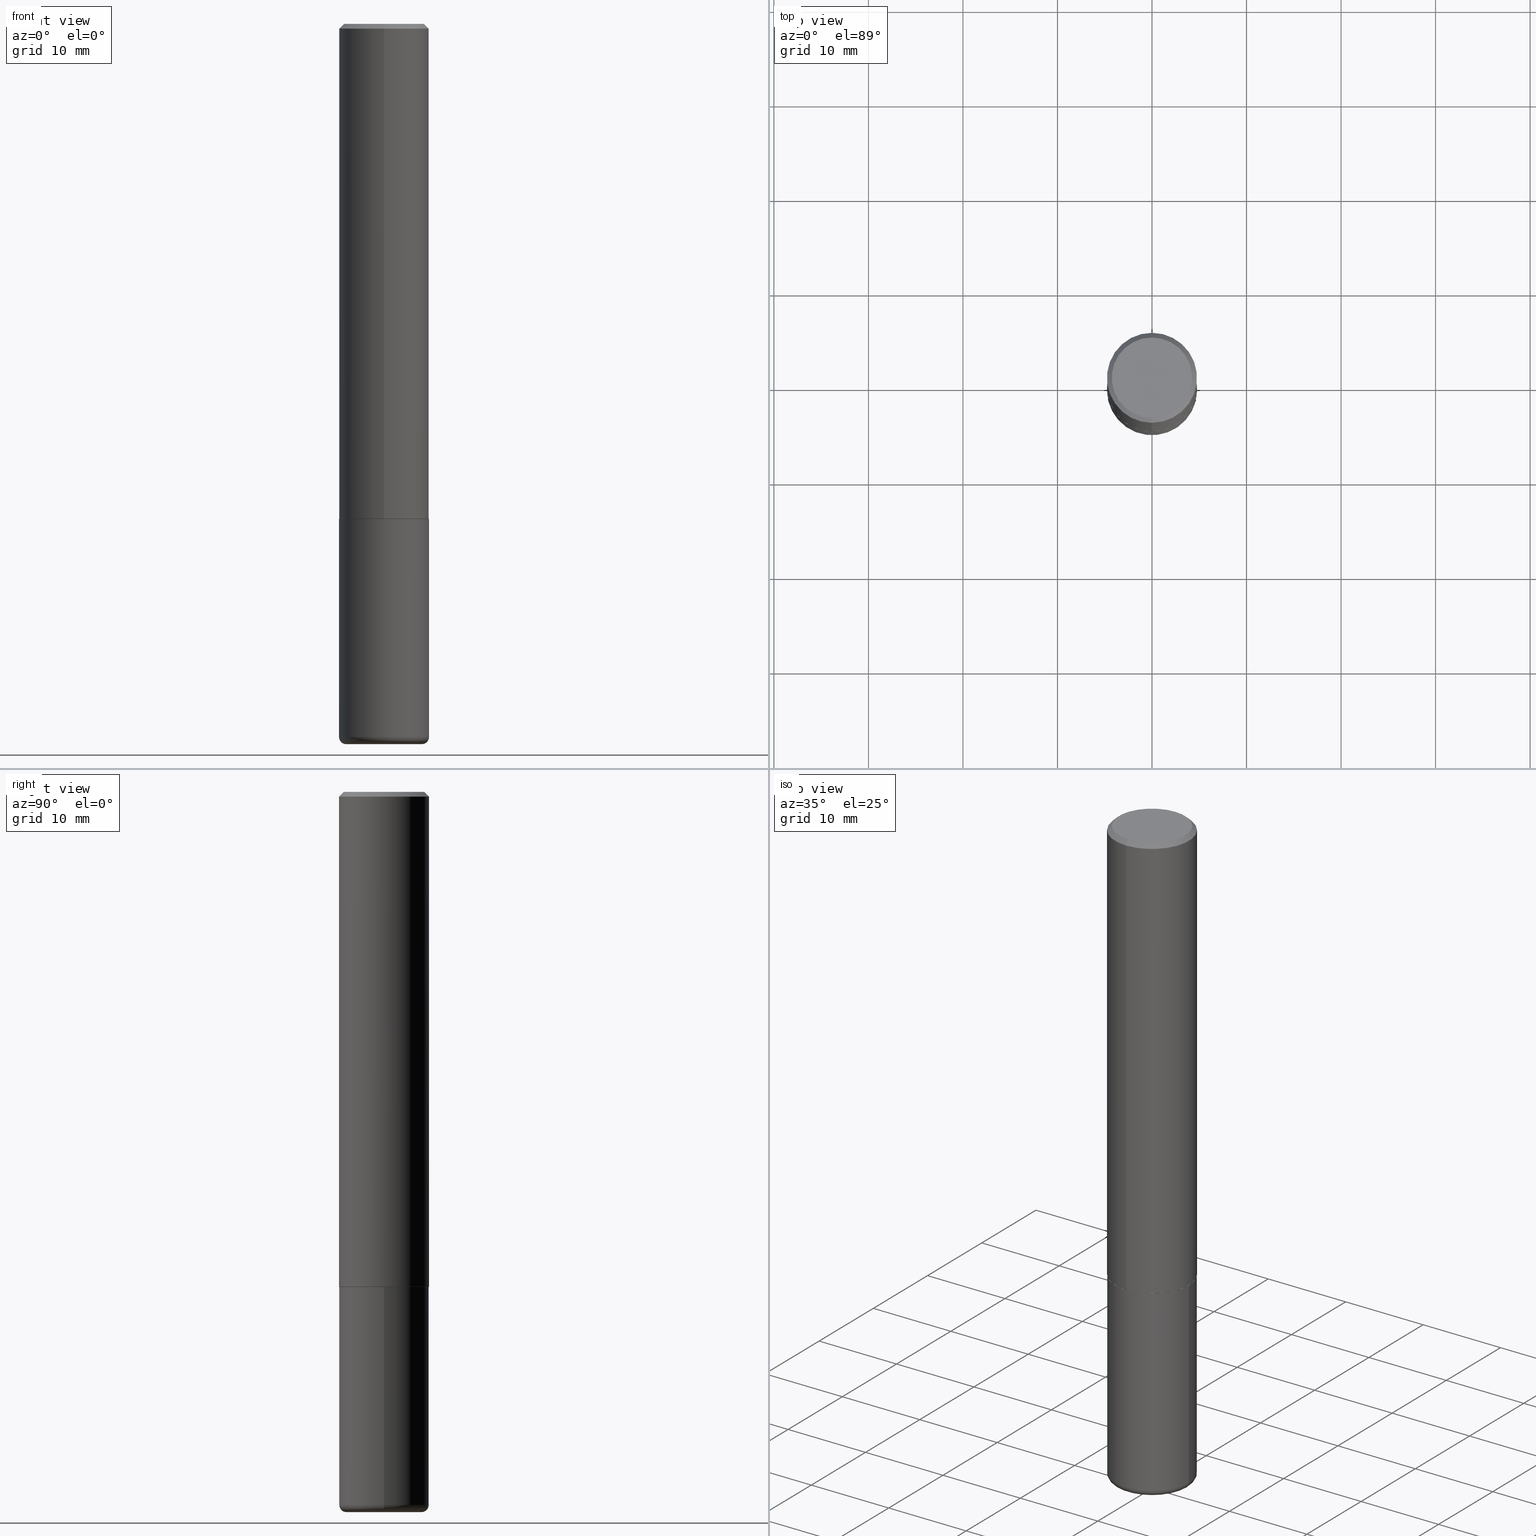
[diagram: canonical four-view strip — front | top / right | iso, engineering-drawing reading convention]
A machine part, canonical four-view strip (front | top / right | iso — engineering-drawing reading convention). The complete STEP part file that produces these views, byte-faithful:
ISO-10303-21;
HEADER;
FILE_DESCRIPTION (( 'STEP AP203' ),
    '1' );
FILE_NAME ('77146.STEP',
    '2024-03-06T16:09:49',
    ( '' ),
    ( '' ),
    'SwSTEP 2.0',
    'SolidWorks 2023',
    '' );
FILE_SCHEMA (( 'CONFIG_CONTROL_DESIGN' ));
ENDSEC;

DATA;
#1 = CARTESIAN_POINT ( 'NONE',  ( 0.000000000000000000, 0.000000000000000000, 0.000000000000000000 ) ) ;
#2 = AXIS2_PLACEMENT_3D ( 'NONE', #256, #218, #103 ) ;
#3 = FACE_OUTER_BOUND ( 'NONE', #185, .T. ) ;
#4 = CALENDAR_DATE ( 2024, 6, 3 ) ;
#5 = ORIENTED_EDGE ( 'NONE', *, *, #242, .F. ) ;
#6 = PERSON_AND_ORGANIZATION_ROLE ( 'design_supplier' ) ;
#7 = EDGE_CURVE ( 'NONE', #211, #114, #373, .T. ) ;
#8 = CIRCLE ( 'NONE', #53, 0.1875000000000000278 ) ;
#9 = ORIENTED_EDGE ( 'NONE', *, *, #14, .F. ) ;
#10 = CALENDAR_DATE ( 2024, 6, 3 ) ;
#11 = ORIENTED_EDGE ( 'NONE', *, *, #108, .F. ) ;
#12 = DIMENSIONAL_EXPONENTS ( 1.000000000000000000, 0.000000000000000000, 0.000000000000000000, 0.000000000000000000, 0.000000000000000000, 0.000000000000000000, 0.000000000000000000 ) ;
#13 = ORIENTED_EDGE ( 'NONE', *, *, #55, .F. ) ;
#14 = EDGE_CURVE ( 'NONE', #290, #372, #122, .T. ) ;
#15 = EDGE_CURVE ( 'NONE', #20, #237, #275, .T. ) ;
#16 = ORIENTED_EDGE ( 'NONE', *, *, #91, .T. ) ;
#17 = DIRECTION ( 'NONE',  ( -2.444573509250226187E-29, 3.492763455011074571E-15, 1.000000000000000000 ) ) ;
#18 = CIRCLE ( 'NONE', #113, 0.1864999999999999991 ) ;
#19 = ORIENTED_EDGE ( 'NONE', *, *, #347, .F. ) ;
#20 = VERTEX_POINT ( 'NONE', #277 ) ;
#21 = ADVANCED_FACE ( 'NONE', ( #239 ), #155, .T. ) ;
#22 = DIRECTION ( 'NONE',  ( 2.438088387897960049E-29, -3.491481338843145188E-15, -1.000000000000000000 ) ) ;
#23 = ORIENTED_EDGE ( 'NONE', *, *, #180, .F. ) ;
#24 = CIRCLE ( 'NONE', #102, 0.1864999999999999991 ) ;
#25 = EDGE_LOOP ( 'NONE', ( #83, #357 ) ) ;
#26 = VERTEX_POINT ( 'NONE', #370 ) ;
#27 = EDGE_CURVE ( 'NONE', #290, #211, #267, .T. ) ;
#28 = DIRECTION ( 'NONE',  ( -2.445468806185136597E-29, 3.491481338843145583E-15, 1.000000000000000000 ) ) ;
#29 = AXIS2_PLACEMENT_3D ( 'NONE', #119, #86, #209 ) ;
#30 = SECURITY_CLASSIFICATION ( '', '', #203 ) ;
#31 = DIRECTION ( 'NONE',  ( 6.982962677686265922E-15, 1.000000000000000000, -3.483106191921934371E-15 ) ) ;
#32 = PERSON_AND_ORGANIZATION_ROLE ( 'design_owner' ) ;
#33 = DIRECTION ( 'NONE',  ( 2.438088387897960049E-29, -3.491481338843145188E-15, -1.000000000000000000 ) ) ;
#34 = ADVANCED_FACE ( 'NONE', ( #181 ), #78, .T. ) ;
#35 = DIRECTION ( 'NONE',  ( 6.982962677686265922E-15, 1.000000000000000000, -3.492763455011074571E-15 ) ) ;
#36 = PERSON_AND_ORGANIZATION ( #333, #315 ) ;
#37 = DIRECTION ( 'NONE',  ( -2.445468806185136597E-29, 3.491481338843145583E-15, 1.000000000000000000 ) ) ;
#38 = CARTESIAN_POINT ( 'NONE',  ( -0.1874999999999998335, -9.037431946813958291E-15, -2.970000000000000195 ) ) ;
#39 = AXIS2_PLACEMENT_3D ( 'NONE', #67, #96, #221 ) ;
#40 = CC_DESIGN_APPROVAL ( #348, ( #30 ) ) ;
#41 = COORDINATED_UNIVERSAL_TIME_OFFSET ( 5, 0, .BEHIND. ) ;
#42 = PERSON_AND_ORGANIZATION ( #333, #315 ) ;
#43 = COORDINATED_UNIVERSAL_TIME_OFFSET ( 5, 0, .BEHIND. ) ;
#44 = PERSON_AND_ORGANIZATION ( #333, #315 ) ;
#45 = CLOSED_SHELL ( 'NONE', ( #235, #34, #276, #303, #387, #129 ) ) ;
#46 = ORIENTED_EDGE ( 'NONE', *, *, #264, .F. ) ;
#47 = CC_DESIGN_SECURITY_CLASSIFICATION ( #30, ( #172 ) ) ;
#48 = DIRECTION ( 'NONE',  ( 1.000000000000000000, -6.982962677686277755E-15, 0.000000000000000000 ) ) ;
#49 = CALENDAR_DATE ( 2024, 6, 3 ) ;
#50 = ORIENTED_EDGE ( 'NONE', *, *, #264, .T. ) ;
#51 = APPROVAL_ROLE ( '' ) ;
#52 = ORIENTED_EDGE ( 'NONE', *, *, #27, .F. ) ;
#53 = AXIS2_PLACEMENT_3D ( 'NONE', #238, #345, #317 ) ;
#54 = ORIENTED_EDGE ( 'NONE', *, *, #242, .T. ) ;
#55 = EDGE_CURVE ( 'NONE', #114, #372, #8, .T. ) ;
#56 = ORIENTED_EDGE ( 'NONE', *, *, #88, .T. ) ;
#57 = ORIENTED_EDGE ( 'NONE', *, *, #274, .F. ) ;
#58 = AXIS2_PLACEMENT_3D ( 'NONE', #382, #95, #125 ) ;
#59 = LOCAL_TIME ( 11, 9, 49.00000000000000000, #262 ) ;
#60 = DIRECTION ( 'NONE',  ( -2.445468806185136597E-29, 3.491481338843145583E-15, 1.000000000000000000 ) ) ;
#61 = CARTESIAN_POINT ( 'NONE',  ( -1.302322539388438310E-15, -0.1865000000000072156, -2.062499999999999556 ) ) ;
#62 = LINE ( 'NONE', #126, #154 ) ;
#63 = FACE_OUTER_BOUND ( 'NONE', #307, .T. ) ;
#64 = FACE_OUTER_BOUND ( 'NONE', #259, .T. ) ;
#65 = AXIS2_PLACEMENT_3D ( 'NONE', #349, #351, #353 ) ;
#66 = LOCAL_TIME ( 11, 9, 49.00000000000000000, #331 ) ;
#67 = CARTESIAN_POINT ( 'NONE',  ( 5.041932862828592247E-29, -7.203824625960342240E-15, -2.062500000000000000 ) ) ;
#68 = FACE_OUTER_BOUND ( 'NONE', #25, .T. ) ;
#69 = FACE_OUTER_BOUND ( 'NONE', #81, .T. ) ;
#70 = CARTESIAN_POINT ( 'NONE',  ( 8.295255739829216733E-46, -1.185211489382978269E-31, -3.393334546267520926E-17 ) ) ;
#71 = CIRCLE ( 'NONE', #301, 0.02999999999999967970 ) ;
#72 = ADVANCED_FACE ( 'NONE', ( #244 ), #184, .T. ) ;
#73 = ORIENTED_EDGE ( 'NONE', *, *, #161, .F. ) ;
#74 = LINE ( 'NONE', #397, #207 ) ;
#75 = FACE_OUTER_BOUND ( 'NONE', #94, .T. ) ;
#76 = CC_DESIGN_PERSON_AND_ORGANIZATION_ASSIGNMENT ( #110, #355, ( #172 ) ) ;
#77 = PERSON_AND_ORGANIZATION_ROLE ( 'creator' ) ;
#78 = TOROIDAL_SURFACE ( 'NONE', #368, 0.1575000000000000289, 0.02999999999999969705 ) ;
#79 = APPROVAL_PERSON_ORGANIZATION ( #292, #335, #323 ) ;
#80 = DATE_TIME_ROLE ( 'creation_date' ) ;
#81 = EDGE_LOOP ( 'NONE', ( #406, #412, #183, #13 ) ) ;
#82 = CARTESIAN_POINT ( 'NONE',  ( 5.043779412756844791E-29, -7.201180261363988578E-15, -2.062500000000000000 ) ) ;
#83 = ORIENTED_EDGE ( 'NONE', *, *, #128, .T. ) ;
#84 = VECTOR ( 'NONE', #418, 39.37007874015748143 ) ;
#85 = PRODUCT_RELATED_PRODUCT_CATEGORY ( 'detail', '', ( #225 ) ) ;
#86 = DIRECTION ( 'NONE',  ( -2.445468806185136597E-29, 3.491481338843145583E-15, 1.000000000000000000 ) ) ;
#87 = ORIENTED_EDGE ( 'NONE', *, *, #161, .T. ) ;
#88 = EDGE_CURVE ( 'NONE', #298, #26, #62, .T. ) ;
#89 = CARTESIAN_POINT ( 'NONE',  ( 0.000000000000000000, 0.000000000000000000, 0.000000000000000000 ) ) ;
#90 = ORIENTED_EDGE ( 'NONE', *, *, #371, .T. ) ;
#91 = EDGE_CURVE ( 'NONE', #237, #26, #134, .T. ) ;
#92 = AXIS2_PLACEMENT_3D ( 'NONE', #392, #318, #35 ) ;
#93 = DIRECTION ( 'NONE',  ( 1.000000000000000000, -6.982962677686265922E-15, 4.876176775795935793E-29 ) ) ;
#94 = EDGE_LOOP ( 'NONE', ( #293, #178, #57, #9 ) ) ;
#95 = DIRECTION ( 'NONE',  ( -2.445468806185136597E-29, 3.491481338843145583E-15, 1.000000000000000000 ) ) ;
#96 = DIRECTION ( 'NONE',  ( -2.444573509250226187E-29, 3.492763455011074571E-15, 1.000000000000000000 ) ) ;
#97 = ADVANCED_FACE ( 'NONE', ( #310 ), #143, .T. ) ;
#98 = CARTESIAN_POINT ( 'NONE',  ( -1.309305502066126296E-15, -0.1875000000000074662, -2.061499999999999666 ) ) ;
#99 = DIRECTION ( 'NONE',  ( 5.024295867789177050E-15, 0.7071067811867068897, 0.7071067811863879227 ) ) ;
#100 = CARTESIAN_POINT ( 'NONE',  ( 0.000000000000000000, 0.000000000000000000, 0.000000000000000000 ) ) ;
#101 = CIRCLE ( 'NONE', #124, 0.1575000000000000289 ) ;
#102 = AXIS2_PLACEMENT_3D ( 'NONE', #111, #17, #360 ) ;
#103 = DIRECTION ( 'NONE',  ( -6.982962677686265922E-15, -1.000000000000000000, 3.483106191921934371E-15 ) ) ;
#104 = DIRECTION ( 'NONE',  ( 1.000000000000000000, -6.982962677686273810E-15, 0.000000000000000000 ) ) ;
#105 = DIRECTION ( 'NONE',  ( -2.445468806185136597E-29, 3.491481338843145583E-15, 1.000000000000000000 ) ) ;
#106 = CARTESIAN_POINT ( 'NONE',  ( -1.286343374582161774E-15, -0.1875000000000001110, -0.01999999999999938632 ) ) ;
#107 = DATE_TIME_ROLE ( 'classification_date' ) ;
#108 = EDGE_CURVE ( 'NONE', #26, #237, #306, .T. ) ;
#109 = CARTESIAN_POINT ( 'NONE',  ( -0.1575000000000000289, -9.196385577260617732E-15, -2.999999999999999556 ) ) ;
#110 = PERSON_AND_ORGANIZATION ( #333, #315 ) ;
#111 = CARTESIAN_POINT ( 'NONE',  ( 5.041932862828592247E-29, -7.203824625960342240E-15, -2.062500000000000000 ) ) ;
#112 = DATE_AND_TIME ( #10, #402 ) ;
#113 = AXIS2_PLACEMENT_3D ( 'NONE', #243, #121, #159 ) ;
#114 = VERTEX_POINT ( 'NONE', #279 ) ;
#115 = EDGE_LOOP ( 'NONE', ( #146, #50, #52, #147 ) ) ;
#116 = EDGE_LOOP ( 'NONE', ( #268, #120, #54, #73 ) ) ;
#117 = DIRECTION ( 'NONE',  ( -6.982962677686265922E-15, -1.000000000000000000, 2.929595703661408456E-15 ) ) ;
#118 = AXIS2_PLACEMENT_3D ( 'NONE', #70, #284, #417 ) ;
#119 = CARTESIAN_POINT ( 'NONE',  ( 7.263042354369856275E-29, -1.036969957636414298E-14, -2.970000000000000195 ) ) ;
#120 = ORIENTED_EDGE ( 'NONE', *, *, #416, .T. ) ;
#121 = DIRECTION ( 'NONE',  ( -2.444573509250226187E-29, 3.492763455011074571E-15, 1.000000000000000000 ) ) ;
#122 = LINE ( 'NONE', #151, #336 ) ;
#123 = DIRECTION ( 'NONE',  ( -4.851104656540961908E-15, -0.7071067811865496822, -0.7071067811865453523 ) ) ;
#124 = AXIS2_PLACEMENT_3D ( 'NONE', #288, #105, #186 ) ;
#125 = DIRECTION ( 'NONE',  ( 1.000000000000000000, -6.982962677686261189E-15, 0.000000000000000000 ) ) ;
#126 = CARTESIAN_POINT ( 'NONE',  ( 1.325162202192637130E-15, 0.1864999999999928104, -2.062500000000000888 ) ) ;
#127 = LINE ( 'NONE', #283, #202 ) ;
#128 = EDGE_CURVE ( 'NONE', #305, #404, #362, .T. ) ;
#129 = ADVANCED_FACE ( 'NONE', ( #187 ), #189, .T. ) ;
#130 = DIRECTION ( 'NONE',  ( -2.444573509250226187E-29, 3.492763455011074571E-15, 1.000000000000000000 ) ) ;
#131 = PRODUCT_DEFINITION_SHAPE ( 'NONE', 'NONE',  #137 ) ;
#132 = CARTESIAN_POINT ( 'NONE',  ( 7.336406418555408669E-29, -1.047444401652943478E-14, -2.999999999999999556 ) ) ;
#133 = CARTESIAN_POINT ( 'NONE',  ( 0.1874999999999998335, -1.167900507843031957E-14, -2.970000000000000195 ) ) ;
#134 = CIRCLE ( 'NONE', #413, 0.1875000000000002498 ) ;
#135 = DIRECTION ( 'NONE',  ( -2.444573509250226187E-29, 3.492763455011074571E-15, 1.000000000000000000 ) ) ;
#136 = APPROVAL_STATUS ( 'not_yet_approved' ) ;
#137 = PRODUCT_DEFINITION ( 'UNKNOWN', '', #172, #321 ) ;
#138 = DIRECTION ( 'NONE',  ( -2.444573509250226187E-29, 3.492763455011074571E-15, 1.000000000000000000 ) ) ;
#139 = PERSON_AND_ORGANIZATION_ROLE ( 'classification_officer' ) ;
#140 = ORIENTED_EDGE ( 'NONE', *, *, #358, .T. ) ;
#141 = AXIS2_PLACEMENT_3D ( 'NONE', #132, #28, #104 ) ;
#142 = EDGE_CURVE ( 'NONE', #26, #230, #127, .T. ) ;
#143 = CONICAL_SURFACE ( 'NONE', #39, 0.1864999999999999991, 0.7853981633976704346 ) ;
#144 = CIRCLE ( 'NONE', #287, 0.02999999999999967970 ) ;
#145 = EDGE_LOOP ( 'NONE', ( #46, #210, #90, #376 ) ) ;
#146 = ORIENTED_EDGE ( 'NONE', *, *, #228, .T. ) ;
#147 = ORIENTED_EDGE ( 'NONE', *, *, #371, .F. ) ;
#148 = CIRCLE ( 'NONE', #375, 0.1875000000000000555 ) ;
#149 = CC_DESIGN_PERSON_AND_ORGANIZATION_ASSIGNMENT ( #44, #77, ( #137 ) ) ;
#150 = CYLINDRICAL_SURFACE ( 'NONE', #329, 0.1875000000000000278 ) ;
#151 = CARTESIAN_POINT ( 'NONE',  ( 0.1875000000000000278, -1.309305502066175008E-15, 9.142831454617381013E-30 ) ) ;
#152 = ORIENTED_EDGE ( 'NONE', *, *, #91, .F. ) ;
#153 = DIRECTION ( 'NONE',  ( -2.445468806185136597E-29, 3.491481338843145583E-15, 1.000000000000000000 ) ) ;
#154 = VECTOR ( 'NONE', #99, 39.37007874015748854 ) ;
#155 = CONICAL_SURFACE ( 'NONE', #253, 0.1864999999999999991, 0.7853981633976704346 ) ;
#156 = AXIS2_PLACEMENT_3D ( 'NONE', #311, #247, #316 ) ;
#157 = DIRECTION ( 'NONE',  ( 2.444573509250226187E-29, -3.492763455011074571E-15, -1.000000000000000000 ) ) ;
#158 = CARTESIAN_POINT ( 'NONE',  ( 4.889147018500461238E-31, -6.985526910022160680E-17, -0.02000000000000003858 ) ) ;
#159 = DIRECTION ( 'NONE',  ( -6.982962677686265922E-15, -1.000000000000000000, 2.929595703661408456E-15 ) ) ;
#160 = CYLINDRICAL_SURFACE ( 'NONE', #231, 0.1875000000000001388 ) ;
#161 = EDGE_CURVE ( 'NONE', #305, #230, #388, .T. ) ;
#162 = AXIS2_PLACEMENT_3D ( 'NONE', #380, #138, #322 ) ;
#163 = AXIS2_PLACEMENT_3D ( 'NONE', #385, #285, #222 ) ;
#164 = DIRECTION ( 'NONE',  ( 2.444573509250226187E-29, -3.492763455011074571E-15, -1.000000000000000000 ) ) ;
#165 = DATE_AND_TIME ( #227, #409 ) ;
#166 = CARTESIAN_POINT ( 'NONE',  ( 0.1875000000000000278, -8.510485763430163586E-15, -2.062500000000000000 ) ) ;
#167 = COORDINATED_UNIVERSAL_TIME_OFFSET ( 5, 0, .BEHIND. ) ;
#168 = EDGE_CURVE ( 'NONE', #229, #332, #395, .T. ) ;
#169 = APPROVAL_DATE_TIME ( #165, #335 ) ;
#170 = EDGE_LOOP ( 'NONE', ( #140, #56, #152, #337 ) ) ;
#171 = VECTOR ( 'NONE', #410, 39.37007874015748143 ) ;
#172 = PRODUCT_DEFINITION_FORMATION_WITH_SPECIFIED_SOURCE ( 'ANY', '', #225, .NOT_KNOWN. ) ;
#173 = DIRECTION ( 'NONE',  ( 1.000000000000000000, -6.982962677686265922E-15, 4.876176775795935793E-29 ) ) ;
#174 = DATE_AND_TIME ( #49, #66 ) ;
#175 = CARTESIAN_POINT ( 'NONE',  ( 1.239475875289312893E-15, 0.1675000000000000655, -6.189712241770304790E-16 ) ) ;
#176 = ORIENTED_EDGE ( 'NONE', *, *, #168, .F. ) ;
#177 = CC_DESIGN_DATE_AND_TIME_ASSIGNMENT ( #174, #107, ( #30 ) ) ;
#178 = ORIENTED_EDGE ( 'NONE', *, *, #7, .T. ) ;
#179 = DIRECTION ( 'NONE',  ( -2.445468806185136877E-29, 3.491481338843145188E-15, 1.000000000000000000 ) ) ;
#180 = EDGE_CURVE ( 'NONE', #230, #233, #401, .T. ) ;
#181 = FACE_OUTER_BOUND ( 'NONE', #115, .T. ) ;
#182 = ADVANCED_FACE ( 'NONE', ( #64 ), #272, .T. ) ;
#183 = ORIENTED_EDGE ( 'NONE', *, *, #14, .T. ) ;
#184 = CONICAL_SURFACE ( 'NONE', #260, 0.1875000000000000555, 0.7853981633974479459 ) ;
#185 = EDGE_LOOP ( 'NONE', ( #400, #300, #302, #23 ) ) ;
#186 = DIRECTION ( 'NONE',  ( 1.000000000000000000, -6.982962677686273810E-15, 0.000000000000000000 ) ) ;
#187 = FACE_OUTER_BOUND ( 'NONE', #214, .T. ) ;
#188 = AXIS2_PLACEMENT_3D ( 'NONE', #100, #254, #386 ) ;
#189 = PLANE ( 'NONE',  #350 ) ;
#190 = APPLICATION_PROTOCOL_DEFINITION ( 'international standard', 'config_control_design', 1994, #289 ) ;
#191 = PLANE ( 'NONE',  #92 ) ;
#192 =( NAMED_UNIT ( * ) SI_UNIT ( $, .STERADIAN. ) SOLID_ANGLE_UNIT ( ) );
#193 = CYLINDRICAL_SURFACE ( 'NONE', #396, 0.1875000000000000278 ) ;
#194 = DIRECTION ( 'NONE',  ( -1.000000000000000000, 6.982962677686265922E-15, -4.876176775795935793E-29 ) ) ;
#195 = LENGTH_MEASURE_WITH_UNIT ( LENGTH_MEASURE( 0.02539999999999999897 ), #319 );
#196 = CIRCLE ( 'NONE', #58, 0.1875000000000000278 ) ;
#197 = APPROVAL_STATUS ( 'not_yet_approved' ) ;
#198 = CARTESIAN_POINT ( 'NONE',  ( -1.217738394604446837E-15, -0.1675000000000000655, 5.511045332516800112E-16 ) ) ;
#199 = EDGE_CURVE ( 'NONE', #404, #305, #204, .T. ) ;
#200 = CC_DESIGN_PERSON_AND_ORGANIZATION_ASSIGNMENT ( #324, #6, ( #172 ) ) ;
#201 = DIRECTION ( 'NONE',  ( -2.444573509250225907E-29, 3.492763455011074571E-15, 1.000000000000000000 ) ) ;
#202 = VECTOR ( 'NONE', #246, 39.37007874015748143 ) ;
#203 = SECURITY_CLASSIFICATION_LEVEL ( 'unclassified' ) ;
#204 = CIRCLE ( 'NONE', #162, 0.1675000000000000655 ) ;
#205 =( GEOMETRIC_REPRESENTATION_CONTEXT ( 3 ) GLOBAL_UNCERTAINTY_ASSIGNED_CONTEXT ( ( #325 ) ) GLOBAL_UNIT_ASSIGNED_CONTEXT ( ( #377, #217, #192 ) ) REPRESENTATION_CONTEXT ( 'NONE', 'WORKASPACE' ) );
#206 = EDGE_LOOP ( 'NONE', ( #16, #234, #5, #19 ) ) ;
#207 = VECTOR ( 'NONE', #201, 39.37007874015748143 ) ;
#208 = ADVANCED_FACE ( 'NONE', ( #68 ), #191, .F. ) ;
#209 = DIRECTION ( 'NONE',  ( 1.000000000000000000, -6.982962677686261189E-15, 0.000000000000000000 ) ) ;
#210 = ORIENTED_EDGE ( 'NONE', *, *, #168, .T. ) ;
#211 = VERTEX_POINT ( 'NONE', #38 ) ;
#212 = AXIS2_PLACEMENT_3D ( 'NONE', #313, #157, #415 ) ;
#213 = CC_DESIGN_APPROVAL ( #335, ( #172 ) ) ;
#214 = EDGE_LOOP ( 'NONE', ( #241, #176 ) ) ;
#215 = ADVANCED_FACE ( 'NONE', ( #3 ), #160, .T. ) ;
#216 = CARTESIAN_POINT ( 'NONE',  ( 1.460360359222004371E-28, -6.740404066557149394E-17, -2.999999999999999556 ) ) ;
#217 =( NAMED_UNIT ( * ) PLANE_ANGLE_UNIT ( ) SI_UNIT ( $, .RADIAN. ) );
#218 = DIRECTION ( 'NONE',  ( -2.444573509250226187E-29, 3.492763455011074571E-15, 1.000000000000000000 ) ) ;
#219 = APPROVAL_PERSON_ORGANIZATION ( #403, #348, #51 ) ;
#220 = APPROVAL ( #136, 'UNSPECIFIED' ) ;
#221 = DIRECTION ( 'NONE',  ( -6.982962677686265922E-15, -1.000000000000000000, 2.929595703661408456E-15 ) ) ;
#222 = DIRECTION ( 'NONE',  ( 1.000000000000000000, 0.000000000000000000, 0.000000000000000000 ) ) ;
#223 = DIRECTION ( 'NONE',  ( -6.982962677686266711E-15, -1.000000000000000000, 3.492763455011074966E-15 ) ) ;
#224 = LINE ( 'NONE', #281, #330 ) ;
#225 = PRODUCT ( '77146', '77146', '', ( #245 ) ) ;
#226 = DIRECTION ( 'NONE',  ( 1.000000000000000000, -6.982962677686263555E-15, 4.883557194083111219E-29 ) ) ;
#227 = CALENDAR_DATE ( 2024, 6, 3 ) ;
#228 = EDGE_CURVE ( 'NONE', #332, #229, #101, .T. ) ;
#229 = VERTEX_POINT ( 'NONE', #109 ) ;
#230 = VERTEX_POINT ( 'NONE', #232 ) ;
#231 = AXIS2_PLACEMENT_3D ( 'NONE', #1, #135, #223 ) ;
#232 = CARTESIAN_POINT ( 'NONE',  ( 1.309305502066175797E-15, 0.1874999999999999722, -0.02000000000000069084 ) ) ;
#233 = VERTEX_POINT ( 'NONE', #106 ) ;
#234 = ORIENTED_EDGE ( 'NONE', *, *, #142, .T. ) ;
#235 = ADVANCED_FACE ( 'NONE', ( #75 ), #150, .T. ) ;
#236 = CC_DESIGN_APPROVAL ( #220, ( #137 ) ) ;
#237 = VERTEX_POINT ( 'NONE', #98 ) ;
#238 = CARTESIAN_POINT ( 'NONE',  ( 5.043779412756844791E-29, -7.201180261363988578E-15, -2.062500000000000000 ) ) ;
#239 = FACE_OUTER_BOUND ( 'NONE', #271, .T. ) ;
#240 = DIRECTION ( 'NONE',  ( 7.105427357601001859E-15, 1.000000000000000000, -3.491481338843145583E-15 ) ) ;
#241 = ORIENTED_EDGE ( 'NONE', *, *, #228, .F. ) ;
#242 = EDGE_CURVE ( 'NONE', #233, #230, #148, .T. ) ;
#243 = CARTESIAN_POINT ( 'NONE',  ( 5.041932862828592247E-29, -7.203824625960342240E-15, -2.062500000000000000 ) ) ;
#244 = FACE_OUTER_BOUND ( 'NONE', #116, .T. ) ;
#245 = MECHANICAL_CONTEXT ( 'NONE', #261, 'mechanical' ) ;
#246 = DIRECTION ( 'NONE',  ( -2.444573509250225907E-29, 3.492763455011074571E-15, 1.000000000000000000 ) ) ;
#247 = DIRECTION ( 'NONE',  ( -2.444573509250225627E-29, 3.492763455011074571E-15, 1.000000000000000000 ) ) ;
#248 = EDGE_CURVE ( 'NONE', #211, #290, #196, .T. ) ;
#249 = DIRECTION ( 'NONE',  ( -1.000000000000000000, 6.982962677686265922E-15, -4.876176775795935793E-29 ) ) ;
#250 = EDGE_CURVE ( 'NONE', #298, #20, #18, .T. ) ;
#251 = DIRECTION ( 'NONE',  ( -6.982962677686265922E-15, -1.000000000000000000, 3.483106191921934371E-15 ) ) ;
#252 = CARTESIAN_POINT ( 'NONE',  ( 7.263042354369856275E-29, -1.036969957636414298E-14, -2.970000000000000195 ) ) ;
#253 = AXIS2_PLACEMENT_3D ( 'NONE', #304, #411, #117 ) ;
#254 = DIRECTION ( 'NONE',  ( -2.444573509250226187E-29, 3.492763455011074571E-15, 1.000000000000000000 ) ) ;
#255 = CARTESIAN_POINT ( 'NONE',  ( -0.1575000000000000289, -9.250594767541985380E-15, -2.970000000000000195 ) ) ;
#256 = CARTESIAN_POINT ( 'NONE',  ( 4.889147018500461238E-31, -6.985526910022160680E-17, -0.02000000000000003858 ) ) ;
#257 = APPROVAL_ROLE ( '' ) ;
#258 = CARTESIAN_POINT ( 'NONE',  ( 5.039488289319341668E-29, -7.200331862505331176E-15, -2.061500000000000554 ) ) ;
#259 = EDGE_LOOP ( 'NONE', ( #399, #270, #87, #340 ) ) ;
#260 = AXIS2_PLACEMENT_3D ( 'NONE', #158, #164, #31 ) ;
#261 = APPLICATION_CONTEXT ( 'configuration controlled 3d designs of mechanical parts and assemblies' ) ;
#262 = COORDINATED_UNIVERSAL_TIME_OFFSET ( 5, 0, .BEHIND. ) ;
#263 = DIRECTION ( 'NONE',  ( -2.445468806185136597E-29, 3.491481338843145583E-15, 1.000000000000000000 ) ) ;
#264 = EDGE_CURVE ( 'NONE', #229, #211, #71, .T. ) ;
#265 = ORIENTED_EDGE ( 'NONE', *, *, #88, .F. ) ;
#266 = SHAPE_DEFINITION_REPRESENTATION ( #131, #391 ) ;
#267 = CIRCLE ( 'NONE', #29, 0.1875000000000000278 ) ;
#268 = ORIENTED_EDGE ( 'NONE', *, *, #199, .F. ) ;
#269 = FACE_OUTER_BOUND ( 'NONE', #363, .T. ) ;
#270 = ORIENTED_EDGE ( 'NONE', *, *, #128, .F. ) ;
#271 = EDGE_LOOP ( 'NONE', ( #265, #326, #339, #11 ) ) ;
#272 = CONICAL_SURFACE ( 'NONE', #212, 0.1875000000000000555, 0.7853981633974479459 ) ;
#273 = TOROIDAL_SURFACE ( 'NONE', #414, 0.1575000000000000289, 0.02999999999999969705 ) ;
#274 = EDGE_CURVE ( 'NONE', #372, #114, #341, .T. ) ;
#275 = LINE ( 'NONE', #61, #314 ) ;
#276 = ADVANCED_FACE ( 'NONE', ( #63 ), #312, .F. ) ;
#277 = CARTESIAN_POINT ( 'NONE',  ( -1.302322539388438310E-15, -0.1865000000000072156, -2.062499999999999556 ) ) ;
#278 = CARTESIAN_POINT ( 'NONE',  ( 4.889147018500461238E-31, -6.985526910022160680E-17, -0.02000000000000003858 ) ) ;
#279 = CARTESIAN_POINT ( 'NONE',  ( -0.1875000000000000278, -7.453172289313877932E-15, -2.062500000000000000 ) ) ;
#280 = CARTESIAN_POINT ( 'NONE',  ( 1.309305502066175797E-15, 0.1874999999999999722, -0.02000000000000069084 ) ) ;
#281 = CARTESIAN_POINT ( 'NONE',  ( -1.286343374582161774E-15, -0.1875000000000001110, -0.01999999999999938632 ) ) ;
#282 = CC_DESIGN_PERSON_AND_ORGANIZATION_ASSIGNMENT ( #346, #32, ( #225 ) ) ;
#283 = CARTESIAN_POINT ( 'NONE',  ( 1.332267629550188637E-15, 0.1875000000000001388, -6.548931478145770245E-16 ) ) ;
#284 = DIRECTION ( 'NONE',  ( -2.444573509250226187E-29, 3.492763455011074571E-15, 1.000000000000000000 ) ) ;
#285 = DIRECTION ( 'NONE',  ( 0.000000000000000000, 0.000000000000000000, 1.000000000000000000 ) ) ;
#286 = CLOSED_SHELL ( 'NONE', ( #97, #296, #72, #182, #215, #21, #408, #208 ) ) ;
#287 = AXIS2_PLACEMENT_3D ( 'NONE', #393, #328, #48 ) ;
#288 = CARTESIAN_POINT ( 'NONE',  ( 7.336406418555408669E-29, -1.047444401652943478E-14, -2.999999999999999556 ) ) ;
#289 = APPLICATION_CONTEXT ( 'configuration controlled 3d designs of mechanical parts and assemblies' ) ;
#290 = VERTEX_POINT ( 'NONE', #133 ) ;
#291 = CALENDAR_DATE ( 2024, 6, 3 ) ;
#292 = PERSON_AND_ORGANIZATION ( #333, #315 ) ;
#293 = ORIENTED_EDGE ( 'NONE', *, *, #27, .T. ) ;
#294 = LOCAL_TIME ( 11, 9, 49.00000000000000000, #167 ) ;
#295 = ORIENTED_EDGE ( 'NONE', *, *, #55, .T. ) ;
#296 = ADVANCED_FACE ( 'NONE', ( #390 ), #381, .T. ) ;
#297 = FACE_OUTER_BOUND ( 'NONE', #145, .T. ) ;
#298 = VERTEX_POINT ( 'NONE', #352 ) ;
#299 = MANIFOLD_SOLID_BREP ( 'Body-Move/Copy2[1]', #45 ) ;
#300 = ORIENTED_EDGE ( 'NONE', *, *, #108, .T. ) ;
#301 = AXIS2_PLACEMENT_3D ( 'NONE', #255, #240, #374 ) ;
#302 = ORIENTED_EDGE ( 'NONE', *, *, #347, .T. ) ;
#303 = ADVANCED_FACE ( 'NONE', ( #69 ), #193, .T. ) ;
#304 = CARTESIAN_POINT ( 'NONE',  ( 5.041932862828592247E-29, -7.203824625960342240E-15, -2.062500000000000000 ) ) ;
#305 = VERTEX_POINT ( 'NONE', #175 ) ;
#306 = CIRCLE ( 'NONE', #65, 0.1875000000000002498 ) ;
#307 = EDGE_LOOP ( 'NONE', ( #309, #295 ) ) ;
#308 = MANIFOLD_SOLID_BREP ( 'Body-Move/Copy2[2]', #286 ) ;
#309 = ORIENTED_EDGE ( 'NONE', *, *, #274, .T. ) ;
#310 = FACE_OUTER_BOUND ( 'NONE', #170, .T. ) ;
#311 = CARTESIAN_POINT ( 'NONE',  ( 5.041932862828592247E-29, -7.203824625960342240E-15, -2.062500000000000000 ) ) ;
#312 = PLANE ( 'NONE',  #384 ) ;
#313 = CARTESIAN_POINT ( 'NONE',  ( 4.889147018500461238E-31, -6.985526910022160680E-17, -0.02000000000000003858 ) ) ;
#314 = VECTOR ( 'NONE', #367, 39.37007874015748143 ) ;
#315 = ORGANIZATION ( 'UNSPECIFIED', 'UNSPECIFIED', '' ) ;
#316 = DIRECTION ( 'NONE',  ( -6.982962677686265922E-15, -1.000000000000000000, 3.492763455011074571E-15 ) ) ;
#317 = DIRECTION ( 'NONE',  ( 1.000000000000000000, -6.982962677686266711E-15, 0.000000000000000000 ) ) ;
#318 = DIRECTION ( 'NONE',  ( 2.444573509250225627E-29, -3.492763455011074571E-15, -1.000000000000000000 ) ) ;
#319 =( LENGTH_UNIT ( ) NAMED_UNIT ( * ) SI_UNIT ( $, .METRE. ) );
#320 = CARTESIAN_POINT ( 'NONE',  ( 0.000000000000000000, 0.000000000000000000, 0.000000000000000000 ) ) ;
#321 = DESIGN_CONTEXT ( 'detailed design', #289, 'design' ) ;
#322 = DIRECTION ( 'NONE',  ( -6.982962677686264344E-15, -1.000000000000000000, 3.492763455011074177E-15 ) ) ;
#323 = APPROVAL_ROLE ( '' ) ;
#324 = PERSON_AND_ORGANIZATION ( #333, #315 ) ;
#325 = UNCERTAINTY_MEASURE_WITH_UNIT (LENGTH_MEASURE( 1.000000000000000082E-05 ), #377, 'distance_accuracy_value', 'NONE');
#326 = ORIENTED_EDGE ( 'NONE', *, *, #250, .T. ) ;
#327 = CARTESIAN_POINT ( 'NONE',  ( 7.263042354369856275E-29, -1.036969957636414298E-14, -2.970000000000000195 ) ) ;
#328 = DIRECTION ( 'NONE',  ( -6.982962677686266711E-15, -1.000000000000000000, 3.491481338843145583E-15 ) ) ;
#329 = AXIS2_PLACEMENT_3D ( 'NONE', #89, #60, #93 ) ;
#330 = VECTOR ( 'NONE', #123, 39.37007874015748143 ) ;
#331 = COORDINATED_UNIVERSAL_TIME_OFFSET ( 5, 0, .BEHIND. ) ;
#332 = VERTEX_POINT ( 'NONE', #364 ) ;
#333 = PERSON ( 'UNSPECIFIED', 'UNSPECIFIED', 'UNSPECIFIED', ('UNSPECIFIED'), ('UNSPECIFIED'), ('UNSPECIFIED') ) ;
#334 = ORIENTED_EDGE ( 'NONE', *, *, #358, .F. ) ;
#335 = APPROVAL ( #197, 'UNSPECIFIED' ) ;
#336 = VECTOR ( 'NONE', #179, 39.37007874015748143 ) ;
#337 = ORIENTED_EDGE ( 'NONE', *, *, #15, .F. ) ;
#338 = APPROVAL_STATUS ( 'not_yet_approved' ) ;
#339 = ORIENTED_EDGE ( 'NONE', *, *, #15, .T. ) ;
#340 = ORIENTED_EDGE ( 'NONE', *, *, #180, .T. ) ;
#341 = CIRCLE ( 'NONE', #356, 0.1875000000000000278 ) ;
#342 = CARTESIAN_POINT ( 'NONE',  ( -0.1875000000000000278, 1.332267629550188046E-15, -9.223003294227947991E-30 ) ) ;
#343 = DIRECTION ( 'NONE',  ( -2.445468806185136597E-29, 3.491481338843145583E-15, 1.000000000000000000 ) ) ;
#344 = DIRECTION ( 'NONE',  ( 1.000000000000000000, -6.982962677686266711E-15, 0.000000000000000000 ) ) ;
#345 = DIRECTION ( 'NONE',  ( -2.445468806185136597E-29, 3.491481338843145583E-15, 1.000000000000000000 ) ) ;
#346 = PERSON_AND_ORGANIZATION ( #333, #315 ) ;
#347 = EDGE_CURVE ( 'NONE', #237, #233, #74, .T. ) ;
#348 = APPROVAL ( #338, 'UNSPECIFIED' ) ;
#349 = CARTESIAN_POINT ( 'NONE',  ( 5.039488289319341668E-29, -7.200331862505331176E-15, -2.061500000000000554 ) ) ;
#350 = AXIS2_PLACEMENT_3D ( 'NONE', #216, #33, #194 ) ;
#351 = DIRECTION ( 'NONE',  ( -2.444573509250226187E-29, 3.492763455011074571E-15, 1.000000000000000000 ) ) ;
#352 = CARTESIAN_POINT ( 'NONE',  ( 1.328714915871438423E-15, 0.1864999999999928104, -2.062500000000000888 ) ) ;
#353 = DIRECTION ( 'NONE',  ( -6.982962677686266711E-15, -1.000000000000000000, 2.913971193241876822E-15 ) ) ;
#354 = CC_DESIGN_PERSON_AND_ORGANIZATION_ASSIGNMENT ( #42, #139, ( #30 ) ) ;
#355 = PERSON_AND_ORGANIZATION_ROLE ( 'creator' ) ;
#356 = AXIS2_PLACEMENT_3D ( 'NONE', #378, #343, #344 ) ;
#357 = ORIENTED_EDGE ( 'NONE', *, *, #199, .T. ) ;
#358 = EDGE_CURVE ( 'NONE', #20, #298, #24, .T. ) ;
#359 = APPROVAL_DATE_TIME ( #394, #220 ) ;
#360 = DIRECTION ( 'NONE',  ( -6.982962677686265922E-15, -1.000000000000000000, 2.929595703661408456E-15 ) ) ;
#361 = APPROVAL_DATE_TIME ( #398, #348 ) ;
#362 = CIRCLE ( 'NONE', #118, 0.1675000000000000655 ) ;
#363 = EDGE_LOOP ( 'NONE', ( #334, #405 ) ) ;
#364 = CARTESIAN_POINT ( 'NONE',  ( 0.1575000000000000289, -1.157426063826502304E-14, -2.999999999999999556 ) ) ;
#365 = CC_DESIGN_DATE_AND_TIME_ASSIGNMENT ( #112, #80, ( #137 ) ) ;
#366 = PLANE ( 'NONE',  #156 ) ;
#367 = DIRECTION ( 'NONE',  ( -4.937700262165644559E-15, -0.7071067811867021158, 0.7071067811863929187 ) ) ;
#368 = AXIS2_PLACEMENT_3D ( 'NONE', #252, #153, #226 ) ;
#369 = APPROVAL_PERSON_ORGANIZATION ( #36, #220, #257 ) ;
#370 = CARTESIAN_POINT ( 'NONE',  ( 1.332267629550214473E-15, 0.1874999999999930611, -2.061500000000000998 ) ) ;
#371 = EDGE_CURVE ( 'NONE', #332, #290, #144, .T. ) ;
#372 = VERTEX_POINT ( 'NONE', #166 ) ;
#373 = LINE ( 'NONE', #342, #171 ) ;
#374 = DIRECTION ( 'NONE',  ( -1.000000000000000000, 7.105427357601001859E-15, 0.000000000000000000 ) ) ;
#375 = AXIS2_PLACEMENT_3D ( 'NONE', #278, #130, #251 ) ;
#376 = ORIENTED_EDGE ( 'NONE', *, *, #248, .F. ) ;
#377 =( CONVERSION_BASED_UNIT ( 'INCH', #195 ) LENGTH_UNIT ( ) NAMED_UNIT ( #12 ) );
#378 = CARTESIAN_POINT ( 'NONE',  ( 5.043779412756844791E-29, -7.201180261363988578E-15, -2.062500000000000000 ) ) ;
#379 = DIRECTION ( 'NONE',  ( -2.444573509250226187E-29, 3.492763455011074571E-15, 1.000000000000000000 ) ) ;
#380 = CARTESIAN_POINT ( 'NONE',  ( 8.295255739829216733E-46, -1.185211489382978269E-31, -3.393334546267520926E-17 ) ) ;
#381 = CYLINDRICAL_SURFACE ( 'NONE', #188, 0.1875000000000001388 ) ;
#382 = CARTESIAN_POINT ( 'NONE',  ( 7.263042354369856275E-29, -1.036969957636414298E-14, -2.970000000000000195 ) ) ;
#383 = DIRECTION ( 'NONE',  ( -6.982962677686266711E-15, -1.000000000000000000, 2.913971193241876822E-15 ) ) ;
#384 = AXIS2_PLACEMENT_3D ( 'NONE', #82, #22, #249 ) ;
#385 = CARTESIAN_POINT ( 'NONE',  ( 0.000000000000000000, 0.000000000000000000, 0.000000000000000000 ) ) ;
#386 = DIRECTION ( 'NONE',  ( -6.982962677686266711E-15, -1.000000000000000000, 3.492763455011074966E-15 ) ) ;
#387 = ADVANCED_FACE ( 'NONE', ( #297 ), #273, .T. ) ;
#388 = LINE ( 'NONE', #280, #84 ) ;
#389 = APPLICATION_PROTOCOL_DEFINITION ( 'international standard', 'config_control_design', 1994, #261 ) ;
#390 = FACE_OUTER_BOUND ( 'NONE', #206, .T. ) ;
#391 = ADVANCED_BREP_SHAPE_REPRESENTATION ( '77146', ( #299, #308, #163 ), #205 ) ;
#392 = CARTESIAN_POINT ( 'NONE',  ( 1.169646248512449792E-15, 0.1675000000000000655, -6.020045514456927142E-16 ) ) ;
#393 = CARTESIAN_POINT ( 'NONE',  ( 0.1575000000000000289, -1.146951619809973125E-14, -2.970000000000000195 ) ) ;
#394 = DATE_AND_TIME ( #4, #59 ) ;
#395 = CIRCLE ( 'NONE', #141, 0.1575000000000000289 ) ;
#396 = AXIS2_PLACEMENT_3D ( 'NONE', #320, #37, #173 ) ;
#397 = CARTESIAN_POINT ( 'NONE',  ( -1.309305502066175994E-15, -0.1875000000000001388, 6.548931478145770245E-16 ) ) ;
#398 = DATE_AND_TIME ( #291, #294 ) ;
#399 = ORIENTED_EDGE ( 'NONE', *, *, #416, .F. ) ;
#400 = ORIENTED_EDGE ( 'NONE', *, *, #142, .F. ) ;
#401 = CIRCLE ( 'NONE', #2, 0.1875000000000000555 ) ;
#402 = LOCAL_TIME ( 11, 9, 49.00000000000000000, #41 ) ;
#403 = PERSON_AND_ORGANIZATION ( #333, #315 ) ;
#404 = VERTEX_POINT ( 'NONE', #198 ) ;
#405 = ORIENTED_EDGE ( 'NONE', *, *, #250, .F. ) ;
#406 = ORIENTED_EDGE ( 'NONE', *, *, #7, .F. ) ;
#407 = DIRECTION ( 'NONE',  ( 1.000000000000000000, -6.982962677686263555E-15, 4.883557194083111219E-29 ) ) ;
#408 = ADVANCED_FACE ( 'NONE', ( #269 ), #366, .F. ) ;
#409 = LOCAL_TIME ( 11, 9, 49.00000000000000000, #43 ) ;
#410 = DIRECTION ( 'NONE',  ( -2.445468806185136877E-29, 3.491481338843145188E-15, 1.000000000000000000 ) ) ;
#411 = DIRECTION ( 'NONE',  ( -2.444573509250226187E-29, 3.492763455011074571E-15, 1.000000000000000000 ) ) ;
#412 = ORIENTED_EDGE ( 'NONE', *, *, #248, .T. ) ;
#413 = AXIS2_PLACEMENT_3D ( 'NONE', #258, #379, #383 ) ;
#414 = AXIS2_PLACEMENT_3D ( 'NONE', #327, #263, #407 ) ;
#415 = DIRECTION ( 'NONE',  ( 6.982962677686265922E-15, 1.000000000000000000, -3.483106191921934371E-15 ) ) ;
#416 = EDGE_CURVE ( 'NONE', #404, #233, #224, .T. ) ;
#417 = DIRECTION ( 'NONE',  ( -6.982962677686264344E-15, -1.000000000000000000, 3.492763455011074177E-15 ) ) ;
#418 = DIRECTION ( 'NONE',  ( 4.937700262164545676E-15, 0.7071067811865447972, -0.7071067811865502373 ) ) ;
ENDSEC;
END-ISO-10303-21;
